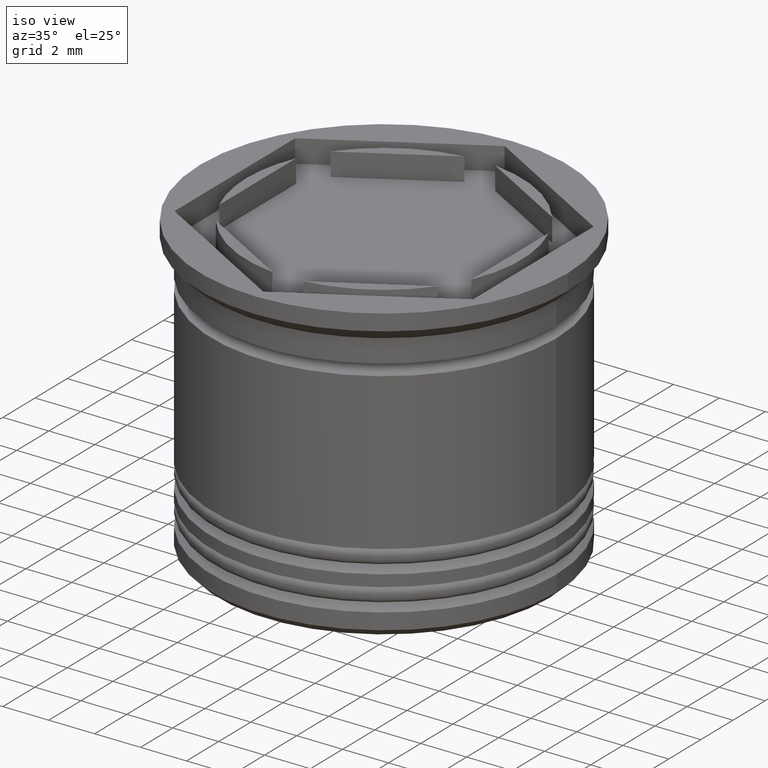
[diagram: clean part render]
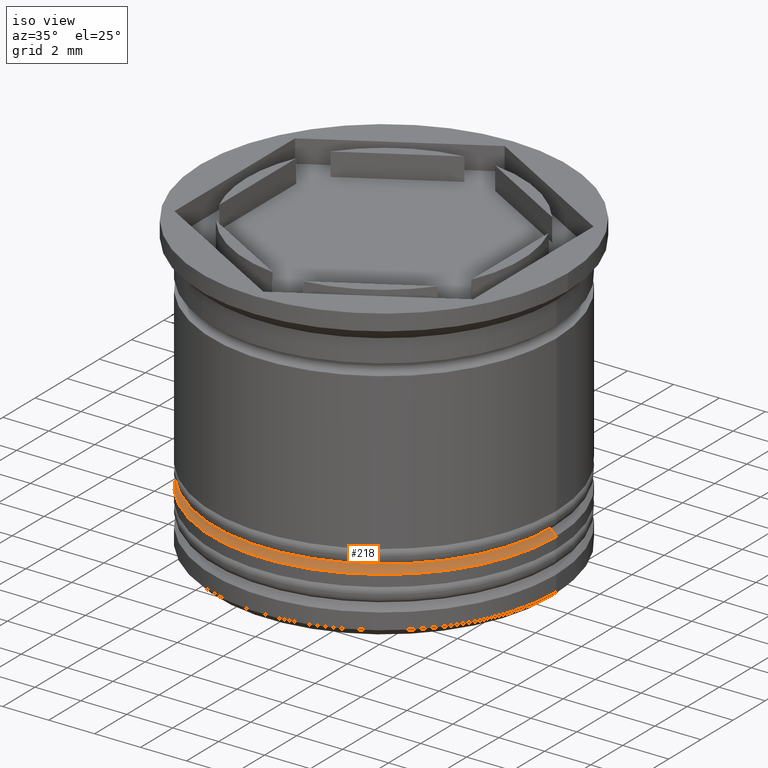
[diagram: same view with one face highlighted and labeled with its STEP entity id]
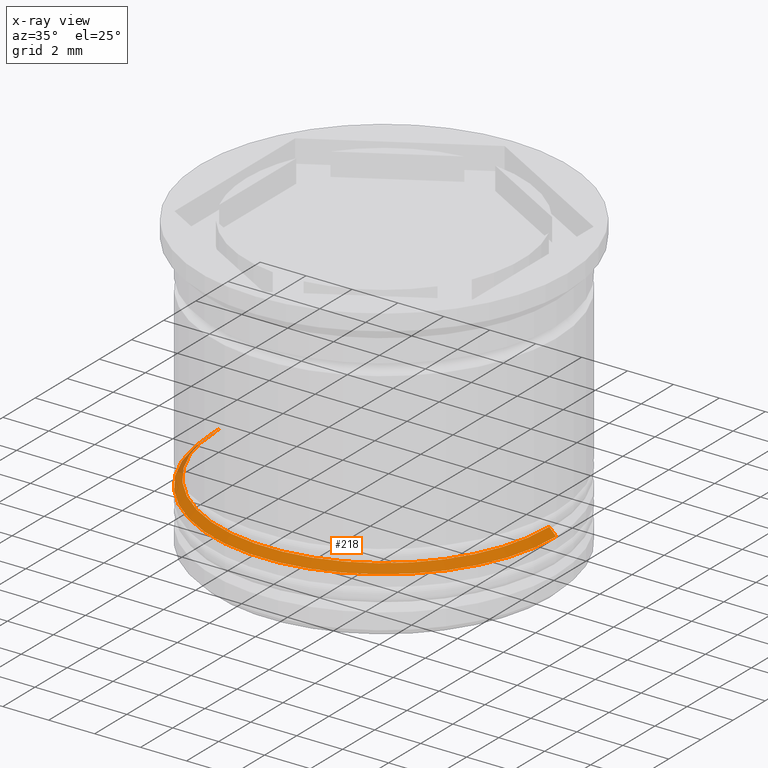
[diagram: x-ray of the same camera — body ghosted, the highlighted face saturated]
A machine part, iso view. The second image highlights one B-rep face of the part: STEP entity #218.
The next image is the same camera in x-ray: the body ghosted, the highlighted face saturated — about 2% of this face is hidden behind the body in this view.
In plain terms, the highlighted conical surface has half-angle 45 deg.
Its self-contained STEP definition (entity closure, byte-faithful):
#30 = VERTEX_POINT ( 'NONE', #1480 ) ;
#42 = VERTEX_POINT ( 'NONE', #1178 ) ;
#134 = AXIS2_PLACEMENT_3D ( 'NONE', #1967, #579, #743 ) ;
#164 = VECTOR ( 'NONE', #966, 1000.000000000000000 ) ;
#218 = ADVANCED_FACE ( 'NONE', ( #476 ), #903, .T. ) ;
#301 = DIRECTION ( 'NONE',  ( 0.000000000000000000, 0.000000000000000000, -1.000000000000000000 ) ) ;
#354 = CARTESIAN_POINT ( 'NONE',  ( 0.000000000000000000, 0.000000000000000000, -10.00000000000000000 ) ) ;
#360 = VECTOR ( 'NONE', #1259, 1000.000000000000000 ) ;
#387 = CARTESIAN_POINT ( 'NONE',  ( -7.500000000000001776, 9.184850993605149917E-16, -10.50000000000000355 ) ) ;
#441 = EDGE_CURVE ( 'NONE', #948, #652, #1118, .T. ) ;
#476 = FACE_OUTER_BOUND ( 'NONE', #642, .T. ) ;
#579 = DIRECTION ( 'NONE',  ( -0.000000000000000000, -0.000000000000000000, 1.000000000000000000 ) ) ;
#627 = DIRECTION ( 'NONE',  ( -1.000000000000000000, 0.000000000000000000, 0.000000000000000000 ) ) ;
#642 = EDGE_LOOP ( 'NONE', ( #985, #878, #1523, #845 ) ) ;
#652 = VERTEX_POINT ( 'NONE', #387 ) ;
#743 = DIRECTION ( 'NONE',  ( -1.000000000000000000, 0.000000000000000000, 0.000000000000000000 ) ) ;
#780 = LINE ( 'NONE', #1150, #164 ) ;
#845 = ORIENTED_EDGE ( 'NONE', *, *, #441, .F. ) ;
#878 = ORIENTED_EDGE ( 'NONE', *, *, #1551, .F. ) ;
#903 = CONICAL_SURFACE ( 'NONE', #1360, 6.999999999999992006, 0.7853981633974533860 ) ;
#930 = DIRECTION ( 'NONE',  ( -1.000000000000000000, 0.000000000000000000, 0.000000000000000000 ) ) ;
#947 = CIRCLE ( 'NONE', #134, 7.200000000000000178 ) ;
#948 = VERTEX_POINT ( 'NONE', #1538 ) ;
#965 = DIRECTION ( 'NONE',  ( 0.000000000000000000, 0.000000000000000000, -1.000000000000000000 ) ) ;
#966 = DIRECTION ( 'NONE',  ( 0.7071067811865512365, 8.659560562354978464E-17, -0.7071067811865439090 ) ) ;
#985 = ORIENTED_EDGE ( 'NONE', *, *, #1592, .F. ) ;
#993 = LINE ( 'NONE', #1586, #360 ) ;
#1118 = CIRCLE ( 'NONE', #1298, 7.500000000000001776 ) ;
#1150 = CARTESIAN_POINT ( 'NONE',  ( 6.999999999999992006, 8.572527594031463329E-16, -10.00000000000000000 ) ) ;
#1178 = CARTESIAN_POINT ( 'NONE',  ( -7.200000000000000178, 8.817456953860942303E-16, -10.20000000000000639 ) ) ;
#1259 = DIRECTION ( 'NONE',  ( -0.7071067811865512365, 0.000000000000000000, -0.7071067811865439090 ) ) ;
#1298 = AXIS2_PLACEMENT_3D ( 'NONE', #1836, #301, #930 ) ;
#1360 = AXIS2_PLACEMENT_3D ( 'NONE', #354, #965, #627 ) ;
#1465 = EDGE_CURVE ( 'NONE', #42, #652, #993, .T. ) ;
#1480 = CARTESIAN_POINT ( 'NONE',  ( 7.200000000000000178, 0.000000000000000000, -10.20000000000000639 ) ) ;
#1523 = ORIENTED_EDGE ( 'NONE', *, *, #1465, .T. ) ;
#1538 = CARTESIAN_POINT ( 'NONE',  ( 7.500000000000001776, 0.000000000000000000, -10.50000000000000355 ) ) ;
#1551 = EDGE_CURVE ( 'NONE', #42, #30, #947, .T. ) ;
#1586 = CARTESIAN_POINT ( 'NONE',  ( -6.999999999999992006, 0.000000000000000000, -10.00000000000000000 ) ) ;
#1592 = EDGE_CURVE ( 'NONE', #30, #948, #780, .T. ) ;
#1836 = CARTESIAN_POINT ( 'NONE',  ( 0.000000000000000000, 0.000000000000000000, -10.50000000000000355 ) ) ;
#1967 = CARTESIAN_POINT ( 'NONE',  ( 0.000000000000000000, 0.000000000000000000, -10.20000000000000639 ) ) ;